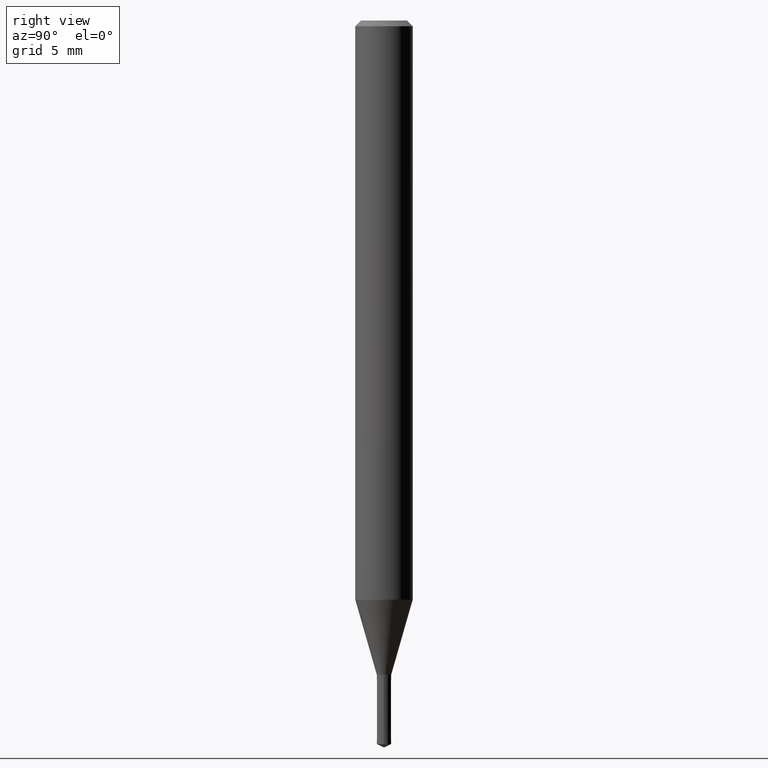
[diagram: clean part render]
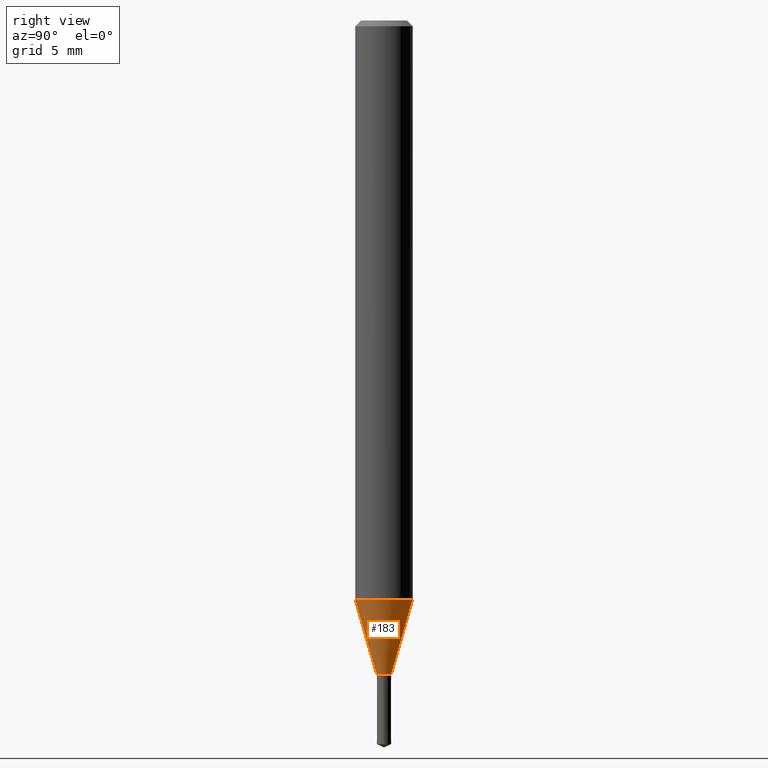
[diagram: same view with one face highlighted and labeled with its STEP entity id]
A machine part, right view. The second image highlights one B-rep face of the part: STEP entity #183.
In plain terms, the highlighted conical surface has half-angle 16.005 deg.
Its self-contained STEP definition (entity closure, byte-faithful):
#99=EDGE_CURVE('',#103,#169,#236,.T.);
#103=VERTEX_POINT('',#241);
#119=VERTEX_POINT('',#259);
#127=VERTEX_POINT('',#267);
#153=EDGE_CURVE('',#103,#119,#299,.T.);
#159=EDGE_CURVE('',#127,#169,#305,.T.);
#169=VERTEX_POINT('',#315);
#181=EDGE_CURVE('',#119,#127,#328,.T.);
#183=ADVANCED_FACE('',(#330),#331,.T.);
#236=CIRCLE('',#379,1.5);
#241=CARTESIAN_POINT('',(0.0,1.5,-30.277));
#259=CARTESIAN_POINT('',(0.0,0.375,-34.1991339745962));
#267=CARTESIAN_POINT('',(4.59227382683391E-017,-0.375,-34.1991339745962));
#299=LINE('',#456,#457);
#305=LINE('',#464,#465);
#315=CARTESIAN_POINT('',(1.83690953073357E-016,-1.5,-30.277));
#328=CIRCLE('',#499,0.375);
#330=FACE_OUTER_BOUND('',#501,.T.);
#331=CONICAL_SURFACE('',#502,0.9375,0.279334235816107);
#379=AXIS2_PLACEMENT_3D('',#554,#555,#556);
#456=CARTESIAN_POINT('',(-1.14806845670848E-016,0.9375,-32.2380669872981));
#457=VECTOR('',#643,1.0);
#464=CARTESIAN_POINT('',(1.14806845670848E-016,-0.9375,-32.2380669872981));
#465=VECTOR('',#648,1.0);
#499=AXIS2_PLACEMENT_3D('',#672,#673,#674);
#501=EDGE_LOOP('',(#676,#677,#678,#679));
#502=AXIS2_PLACEMENT_3D('',#680,#681,#682);
#554=CARTESIAN_POINT('',(0.0,0.0,-30.277));
#555=DIRECTION('',(0.0,0.0,-1.0));
#556=DIRECTION('',(0.0,1.0,0.0));
#643=DIRECTION('',(3.37643260616104E-017,-0.275715751075612,-0.961239212999975));
#648=DIRECTION('',(3.37643260616104E-017,-0.275715751075612,0.961239212999975));
#672=CARTESIAN_POINT('',(0.0,0.0,-34.1991339745962));
#673=DIRECTION('',(0.0,0.0,-1.0));
#674=DIRECTION('',(0.0,1.0,0.0));
#676=ORIENTED_EDGE('',*,*,#153,.F.);
#677=ORIENTED_EDGE('',*,*,#99,.T.);
#678=ORIENTED_EDGE('',*,*,#159,.F.);
#679=ORIENTED_EDGE('',*,*,#181,.F.);
#680=CARTESIAN_POINT('',(0.0,0.0,-32.2380669872981));
#681=DIRECTION('',(-0.0,-0.0,1.0));
#682=DIRECTION('',(0.0,1.0,0.0));